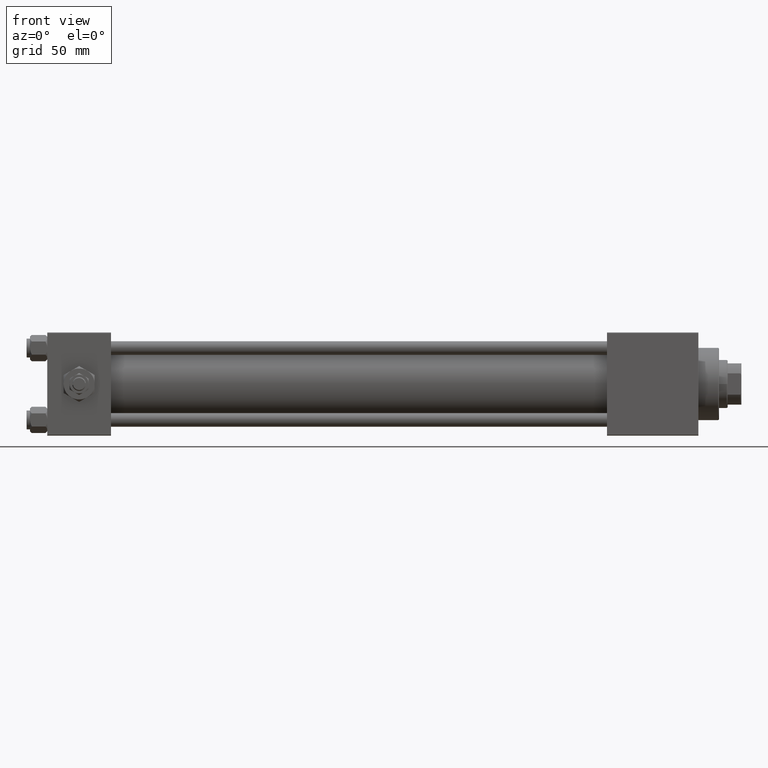
[diagram: clean part render]
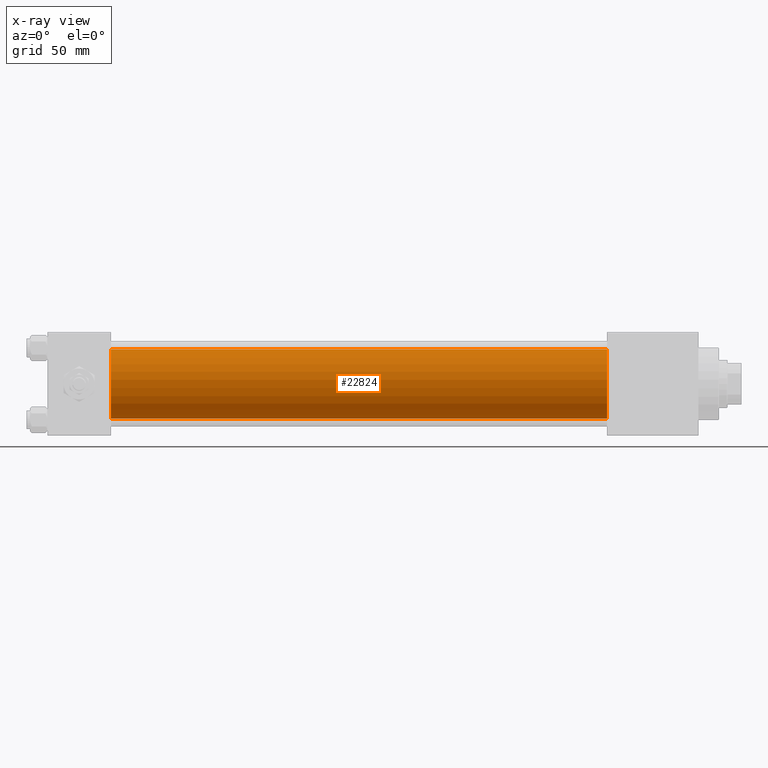
[diagram: x-ray — body ghosted, one internal face saturated and labeled with its STEP entity id]
A machine part, front view, then the same camera in x-ray: the body is ghosted and one INTERNAL B-rep face — a face not visible from any outside direction — is saturated and labeled: STEP entity #22824.
In plain terms, the highlighted cylindrical surface (edge-blend (fillet) strip) has radius 20 mm, axis along (-1, -0, -0).
Its self-contained STEP definition (entity closure, byte-faithful):
#105 = ORIENTED_EDGE ( 'NONE', *, *, #45659, .T. ) ;
#338 = DIRECTION ( 'NONE',  ( 0.000000000000000000, 0.000000000000000000, 1.000000000000000000 ) ) ;
#593 = DIRECTION ( 'NONE',  ( -1.000000000000000000, -0.000000000000000000, -0.000000000000000000 ) ) ;
#1502 = CARTESIAN_POINT ( 'NONE',  ( 324.9999999999999432, -2.602085213965210642E-15, 20.00000000000000000 ) ) ;
#2111 = ORIENTED_EDGE ( 'NONE', *, *, #8463, .F. ) ;
#2354 = EDGE_CURVE ( 'NONE', #27163, #8395, #36680, .T. ) ;
#2439 = VECTOR ( 'NONE', #4398, 1000.000000000000000 ) ;
#3822 = CIRCLE ( 'NONE', #14709, 20.00000000000000000 ) ;
#4398 = DIRECTION ( 'NONE',  ( -1.000000000000000000, -0.000000000000000000, -0.000000000000000000 ) ) ;
#4658 = AXIS2_PLACEMENT_3D ( 'NONE', #50822, #19842, #30865 ) ;
#5790 = VERTEX_POINT ( 'NONE', #41175 ) ;
#8395 = VERTEX_POINT ( 'NONE', #34896 ) ;
#8463 = EDGE_CURVE ( 'NONE', #8395, #31093, #3822, .T. ) ;
#12059 = CARTESIAN_POINT ( 'NONE',  ( 37.00000000000000000, -2.602085213965210642E-15, 0.000000000000000000 ) ) ;
#14709 = AXIS2_PLACEMENT_3D ( 'NONE', #12059, #48257, #23857 ) ;
#16100 = FACE_OUTER_BOUND ( 'NONE', #23102, .T. ) ;
#19842 = DIRECTION ( 'NONE',  ( 1.000000000000000000, 0.000000000000000000, 0.000000000000000000 ) ) ;
#20165 = CARTESIAN_POINT ( 'NONE',  ( 324.9999999999999432, -1.527916156705042519E-16, -20.00000000000000000 ) ) ;
#22824 = ADVANCED_FACE ( 'NONE', ( #16100 ), #36554, .F. ) ;
#23102 = EDGE_LOOP ( 'NONE', ( #49232, #105, #2111, #34597 ) ) ;
#23722 = CARTESIAN_POINT ( 'NONE',  ( 324.9999999999999432, -2.602085213965210642E-15, 0.000000000000000000 ) ) ;
#23857 = DIRECTION ( 'NONE',  ( 0.000000000000000000, 0.000000000000000000, -1.000000000000000000 ) ) ;
#27163 = VERTEX_POINT ( 'NONE', #34993 ) ;
#29732 = CARTESIAN_POINT ( 'NONE',  ( 37.00000000000000000, -1.527916156705042519E-16, -20.00000000000000000 ) ) ;
#30413 = VECTOR ( 'NONE', #33783, 1000.000000000000000 ) ;
#30865 = DIRECTION ( 'NONE',  ( 0.000000000000000000, 0.000000000000000000, -1.000000000000000000 ) ) ;
#31093 = VERTEX_POINT ( 'NONE', #29732 ) ;
#32802 = EDGE_CURVE ( 'NONE', #27163, #5790, #36499, .T. ) ;
#33783 = DIRECTION ( 'NONE',  ( -1.000000000000000000, -0.000000000000000000, -0.000000000000000000 ) ) ;
#34597 = ORIENTED_EDGE ( 'NONE', *, *, #2354, .F. ) ;
#34896 = CARTESIAN_POINT ( 'NONE',  ( 37.00000000000000000, -2.602085213965210642E-15, 20.00000000000000000 ) ) ;
#34993 = CARTESIAN_POINT ( 'NONE',  ( 324.9999999999999432, -2.602085213965210642E-15, 20.00000000000000000 ) ) ;
#36499 = CIRCLE ( 'NONE', #4658, 20.00000000000000000 ) ;
#36554 = CYLINDRICAL_SURFACE ( 'NONE', #41905, 20.00000000000000000 ) ;
#36680 = LINE ( 'NONE', #1502, #30413 ) ;
#41175 = CARTESIAN_POINT ( 'NONE',  ( 324.9999999999999432, -1.527916156705042519E-16, -20.00000000000000000 ) ) ;
#41905 = AXIS2_PLACEMENT_3D ( 'NONE', #23722, #593, #338 ) ;
#44285 = LINE ( 'NONE', #20165, #2439 ) ;
#45659 = EDGE_CURVE ( 'NONE', #5790, #31093, #44285, .T. ) ;
#48257 = DIRECTION ( 'NONE',  ( 1.000000000000000000, 0.000000000000000000, 0.000000000000000000 ) ) ;
#49232 = ORIENTED_EDGE ( 'NONE', *, *, #32802, .T. ) ;
#50822 = CARTESIAN_POINT ( 'NONE',  ( 324.9999999999999432, -2.602085213965210642E-15, 0.000000000000000000 ) ) ;